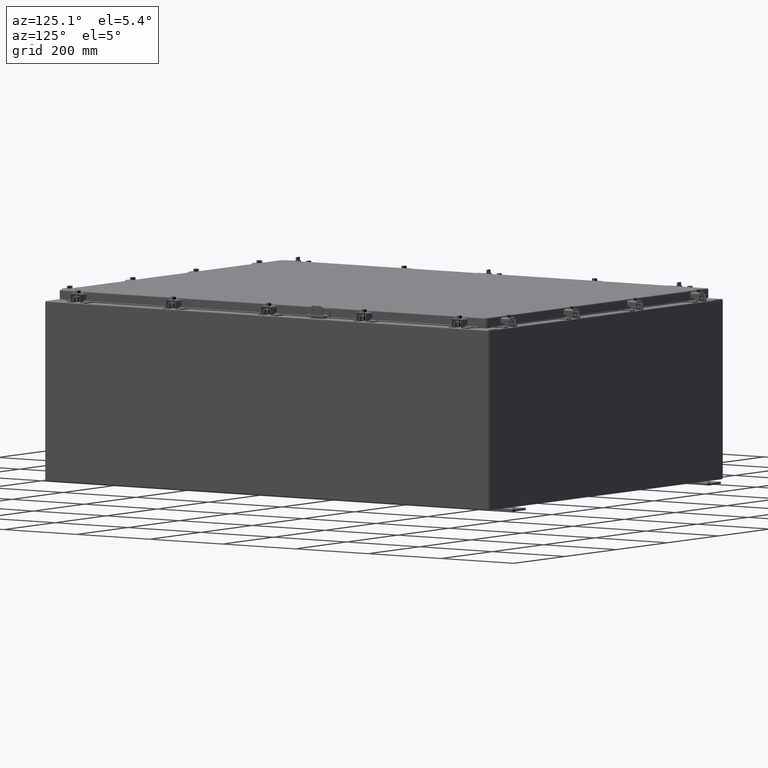
[diagram: clean part render]
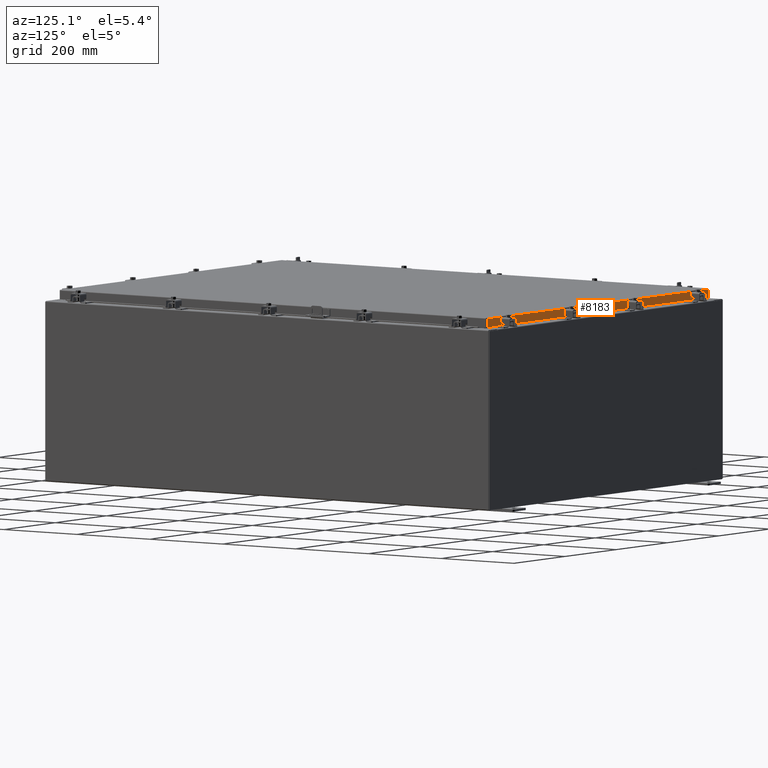
[diagram: same view with one face highlighted and labeled with its STEP entity id]
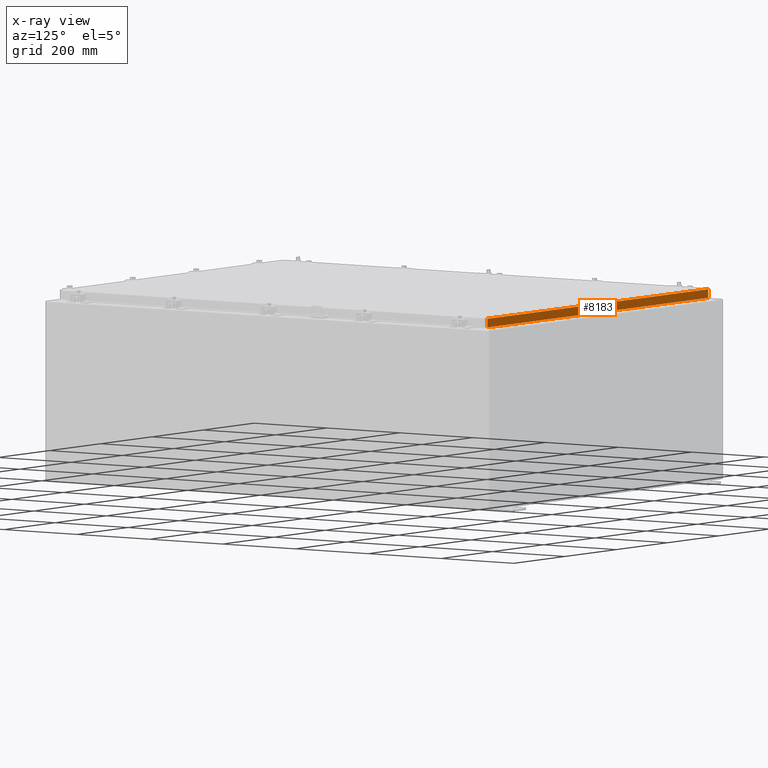
[diagram: x-ray of the same camera — body ghosted, the highlighted face saturated]
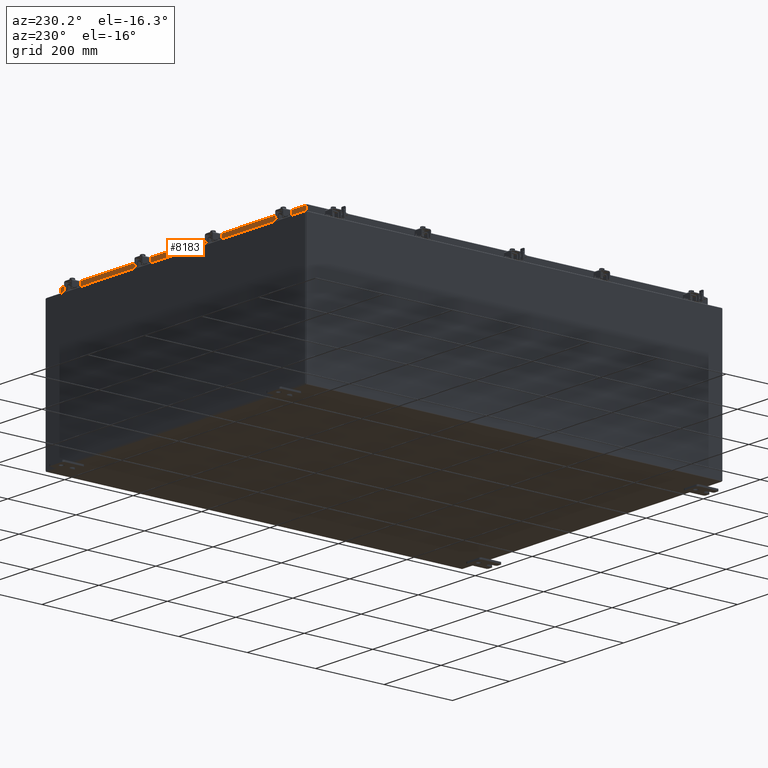
[diagram: same view with one face highlighted and labeled with its STEP entity id]
A machine part, auxiliary view. The second image highlights one B-rep face of the part: STEP entity #8183.
The next image is the same camera in x-ray: the body ghosted, the highlighted face saturated — about 0% of this face is hidden behind the body in this view.
A second angle (auxiliary view) of the same face is appended — the face is thin or edge-on in the first view.
In plain terms, the highlighted planar face has unit normal (0, -1, -0).
Its self-contained STEP definition (entity closure, byte-faithful):
#957 = ORIENTED_EDGE ( 'NONE', *, *, #5075, .F. ) ;
#1798 = VECTOR ( 'NONE', #23676, 39.37007874015748100 ) ;
#1823 = LINE ( 'NONE', #18726, #22873 ) ;
#2778 = VECTOR ( 'NONE', #24082, 39.37007874015748100 ) ;
#3477 = CARTESIAN_POINT ( 'NONE',  ( 16.23915786437626400, 23.09399999999999400, -0.8500000000000043100 ) ) ;
#3696 = VERTEX_POINT ( 'NONE', #17248 ) ;
#3826 = CARTESIAN_POINT ( 'NONE',  ( 16.98915786437627100, 23.09399999999999400, -0.08769999999999589200 ) ) ;
#4113 = CARTESIAN_POINT ( 'NONE',  ( -16.98915786437626700, 23.09400000000000100, -0.8500000000000043100 ) ) ;
#4785 = DIRECTION ( 'NONE',  ( 0.0000000000000000000, 5.637761885544689500E-015, -1.000000000000000000 ) ) ;
#5075 = EDGE_CURVE ( 'NONE', #3696, #17720, #1823, .T. ) ;
#5121 = VERTEX_POINT ( 'NONE', #15073 ) ;
#5286 = EDGE_CURVE ( 'NONE', #18156, #3696, #19578, .T. ) ;
#6105 = ORIENTED_EDGE ( 'NONE', *, *, #17655, .F. ) ;
#6109 = DIRECTION ( 'NONE',  ( 1.000000000000000000, -0.0000000000000000000, -0.0000000000000000000 ) ) ;
#6284 = PLANE ( 'NONE',  #7219 ) ;
#7219 = AXIS2_PLACEMENT_3D ( 'NONE', #16796, #25127, #8433 ) ;
#7307 = ORIENTED_EDGE ( 'NONE', *, *, #5286, .F. ) ;
#8119 = DIRECTION ( 'NONE',  ( 1.000000000000000000, -0.0000000000000000000, 1.239713195391617400E-016 ) ) ;
#8183 = ADVANCED_FACE ( 'NONE', ( #20484 ), #6284, .F. ) ;
#8433 = DIRECTION ( 'NONE',  ( 0.0000000000000000000, 5.637761885544689500E-015, -1.000000000000000000 ) ) ;
#10985 = CARTESIAN_POINT ( 'NONE',  ( 16.98915786437627100, 23.09399999999999400, 1.289432253009532300E-013 ) ) ;
#11792 = VECTOR ( 'NONE', #6109, 39.37007874015748100 ) ;
#12334 = VECTOR ( 'NONE', #8119, 39.37007874015748100 ) ;
#14402 = CARTESIAN_POINT ( 'NONE',  ( -17.07799999999999900, 23.09400000000000100, -0.8500000000000043100 ) ) ;
#15073 = CARTESIAN_POINT ( 'NONE',  ( 16.98915786437627100, 23.09400000000000100, -0.8499999999999999800 ) ) ;
#16796 = CARTESIAN_POINT ( 'NONE',  ( 0.0000000000000000000, 23.09399999999999400, 1.289432253009532300E-013 ) ) ;
#17248 = CARTESIAN_POINT ( 'NONE',  ( -16.98915786437626700, 23.09399999999999400, -0.08769999999999589200 ) ) ;
#17655 = EDGE_CURVE ( 'NONE', #25687, #5121, #18583, .T. ) ;
#17720 = VERTEX_POINT ( 'NONE', #4113 ) ;
#17948 = LINE ( 'NONE', #21583, #1798 ) ;
#18156 = VERTEX_POINT ( 'NONE', #3826 ) ;
#18583 = LINE ( 'NONE', #14402, #12334 ) ;
#18726 = CARTESIAN_POINT ( 'NONE',  ( -16.98915786437626700, 23.09399999999999400, -0.07470000000000015500 ) ) ;
#18752 = CARTESIAN_POINT ( 'NONE',  ( -16.23915786437626000, 23.09399999999999400, -0.8500000000000043100 ) ) ;
#19305 = ORIENTED_EDGE ( 'NONE', *, *, #21361, .T. ) ;
#19578 = LINE ( 'NONE', #26223, #2778 ) ;
#20361 = VECTOR ( 'NONE', #4785, 39.37007874015748100 ) ;
#20484 = FACE_OUTER_BOUND ( 'NONE', #20935, .T. ) ;
#20935 = EDGE_LOOP ( 'NONE', ( #7307, #19305, #6105, #25505, #21257, #957 ) ) ;
#21257 = ORIENTED_EDGE ( 'NONE', *, *, #26058, .F. ) ;
#21361 = EDGE_CURVE ( 'NONE', #18156, #5121, #25929, .T. ) ;
#21583 = CARTESIAN_POINT ( 'NONE',  ( -17.07799999999999900, 23.09400000000000100, -0.8500000000000043100 ) ) ;
#22873 = VECTOR ( 'NONE', #25018, 39.37007874015748100 ) ;
#22943 = LINE ( 'NONE', #18752, #11792 ) ;
#23129 = EDGE_CURVE ( 'NONE', #25520, #25687, #22943, .T. ) ;
#23676 = DIRECTION ( 'NONE',  ( 1.000000000000000000, -0.0000000000000000000, 1.239713195391617400E-016 ) ) ;
#23975 = CARTESIAN_POINT ( 'NONE',  ( -16.23915786437625600, 23.09399999999999400, -0.8500000000000043100 ) ) ;
#24082 = DIRECTION ( 'NONE',  ( -1.000000000000000000, -6.989207801985677300E-031, -3.922586267643528000E-045 ) ) ;
#25018 = DIRECTION ( 'NONE',  ( -0.0000000000000000000, 5.637761885544689500E-015, -1.000000000000000000 ) ) ;
#25127 = DIRECTION ( 'NONE',  ( 6.989207801985676400E-031, -1.000000000000000000, -5.637761885544689500E-015 ) ) ;
#25505 = ORIENTED_EDGE ( 'NONE', *, *, #23129, .F. ) ;
#25520 = VERTEX_POINT ( 'NONE', #23975 ) ;
#25687 = VERTEX_POINT ( 'NONE', #3477 ) ;
#25929 = LINE ( 'NONE', #10985, #20361 ) ;
#26058 = EDGE_CURVE ( 'NONE', #17720, #25520, #17948, .T. ) ;
#26223 = CARTESIAN_POINT ( 'NONE',  ( -17.07799999999999900, 23.09399999999999400, -0.08769999999999589200 ) ) ;